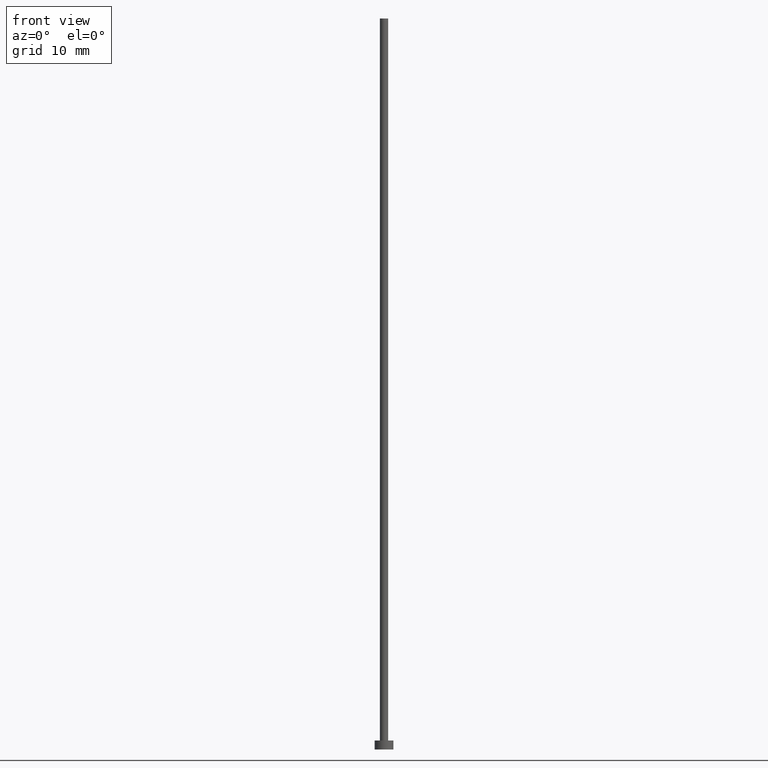
[diagram: clean part render]
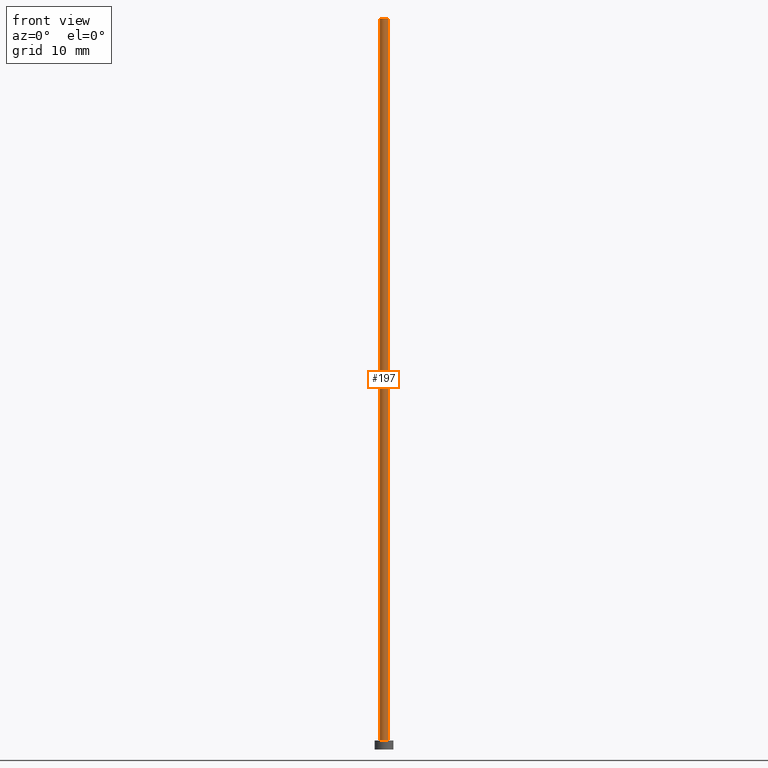
[diagram: same view with one face highlighted and labeled with its STEP entity id]
A machine part, front view. The second image highlights one B-rep face of the part: STEP entity #197.
In plain terms, the highlighted cylindrical surface (edge-blend (fillet) strip) has radius 0.55 mm, axis along (-0, -0, -1).
Its self-contained STEP definition (entity closure, byte-faithful):
#1 = ORIENTED_EDGE ( 'NONE', *, *, #177, .T. ) ;
#3 = CARTESIAN_POINT ( 'NONE',  ( -0.5500000000000000444, 0.000000000000000000, 98.00000000000000000 ) ) ;
#11 = ORIENTED_EDGE ( 'NONE', *, *, #248, .F. ) ;
#16 = AXIS2_PLACEMENT_3D ( 'NONE', #161, #235, #127 ) ;
#21 = AXIS2_PLACEMENT_3D ( 'NONE', #151, #225, #54 ) ;
#35 = EDGE_CURVE ( 'NONE', #171, #190, #228, .T. ) ;
#40 = VERTEX_POINT ( 'NONE', #211 ) ;
#41 = CARTESIAN_POINT ( 'NONE',  ( 0.5500000000000000444, 6.735557395310442516E-17, 98.00000000000000000 ) ) ;
#42 = CARTESIAN_POINT ( 'NONE',  ( 0.000000000000000000, 0.000000000000000000, 98.00000000000000000 ) ) ;
#44 = VECTOR ( 'NONE', #142, 1000.000000000000000 ) ;
#54 = DIRECTION ( 'NONE',  ( 1.000000000000000000, 0.000000000000000000, 0.000000000000000000 ) ) ;
#74 = CIRCLE ( 'NONE', #164, 0.5500000000000000444 ) ;
#86 = FACE_OUTER_BOUND ( 'NONE', #94, .T. ) ;
#90 = CARTESIAN_POINT ( 'NONE',  ( -0.5500000000000000444, 0.000000000000000000, 98.00000000000000000 ) ) ;
#94 = EDGE_LOOP ( 'NONE', ( #168, #11, #1, #192 ) ) ;
#108 = CARTESIAN_POINT ( 'NONE',  ( 0.5500000000000000444, 6.735557395310442516E-17, 1.199999999999999956 ) ) ;
#117 = VECTOR ( 'NONE', #240, 1000.000000000000000 ) ;
#126 = CYLINDRICAL_SURFACE ( 'NONE', #16, 0.5500000000000000444 ) ;
#127 = DIRECTION ( 'NONE',  ( -1.000000000000000000, 0.000000000000000000, 0.000000000000000000 ) ) ;
#142 = DIRECTION ( 'NONE',  ( -0.000000000000000000, -0.000000000000000000, -1.000000000000000000 ) ) ;
#146 = VERTEX_POINT ( 'NONE', #3 ) ;
#151 = CARTESIAN_POINT ( 'NONE',  ( 0.000000000000000000, 0.000000000000000000, 1.199999999999999956 ) ) ;
#161 = CARTESIAN_POINT ( 'NONE',  ( 0.000000000000000000, 0.000000000000000000, 98.00000000000000000 ) ) ;
#163 = DIRECTION ( 'NONE',  ( 0.000000000000000000, 0.000000000000000000, 1.000000000000000000 ) ) ;
#164 = AXIS2_PLACEMENT_3D ( 'NONE', #42, #163, #217 ) ;
#165 = LINE ( 'NONE', #41, #44 ) ;
#168 = ORIENTED_EDGE ( 'NONE', *, *, #216, .F. ) ;
#171 = VERTEX_POINT ( 'NONE', #195 ) ;
#177 = EDGE_CURVE ( 'NONE', #146, #171, #238, .T. ) ;
#190 = VERTEX_POINT ( 'NONE', #108 ) ;
#192 = ORIENTED_EDGE ( 'NONE', *, *, #35, .T. ) ;
#195 = CARTESIAN_POINT ( 'NONE',  ( -0.5500000000000000444, 0.000000000000000000, 1.199999999999999956 ) ) ;
#197 = ADVANCED_FACE ( 'NONE', ( #86 ), #126, .T. ) ;
#211 = CARTESIAN_POINT ( 'NONE',  ( 0.5500000000000000444, 6.735557395310442516E-17, 98.00000000000000000 ) ) ;
#216 = EDGE_CURVE ( 'NONE', #40, #190, #165, .T. ) ;
#217 = DIRECTION ( 'NONE',  ( 1.000000000000000000, 0.000000000000000000, 0.000000000000000000 ) ) ;
#225 = DIRECTION ( 'NONE',  ( 0.000000000000000000, 0.000000000000000000, 1.000000000000000000 ) ) ;
#228 = CIRCLE ( 'NONE', #21, 0.5500000000000000444 ) ;
#235 = DIRECTION ( 'NONE',  ( -0.000000000000000000, -0.000000000000000000, -1.000000000000000000 ) ) ;
#238 = LINE ( 'NONE', #90, #117 ) ;
#240 = DIRECTION ( 'NONE',  ( -0.000000000000000000, -0.000000000000000000, -1.000000000000000000 ) ) ;
#248 = EDGE_CURVE ( 'NONE', #146, #40, #74, .T. ) ;